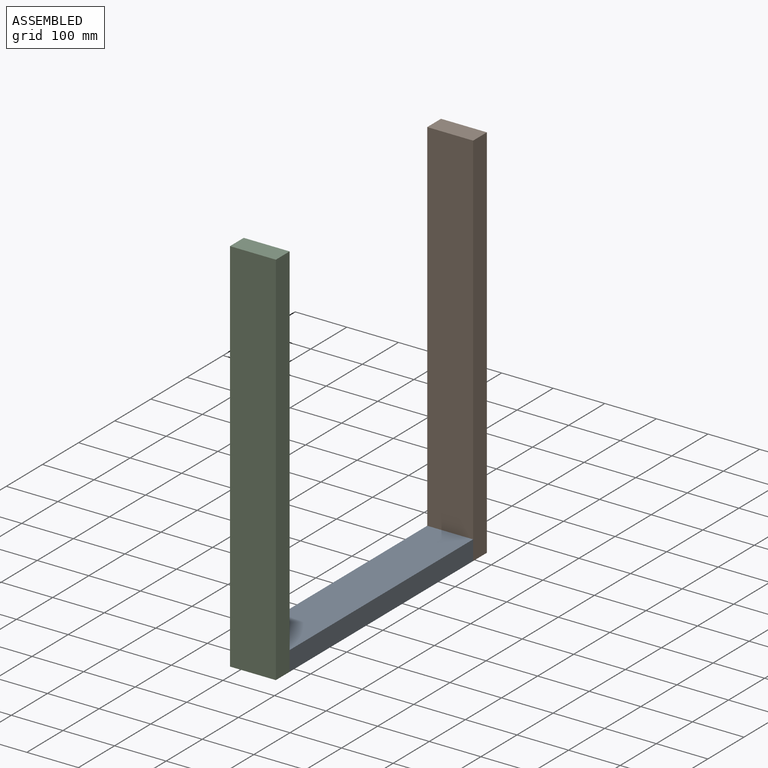
[diagram: assembled view]
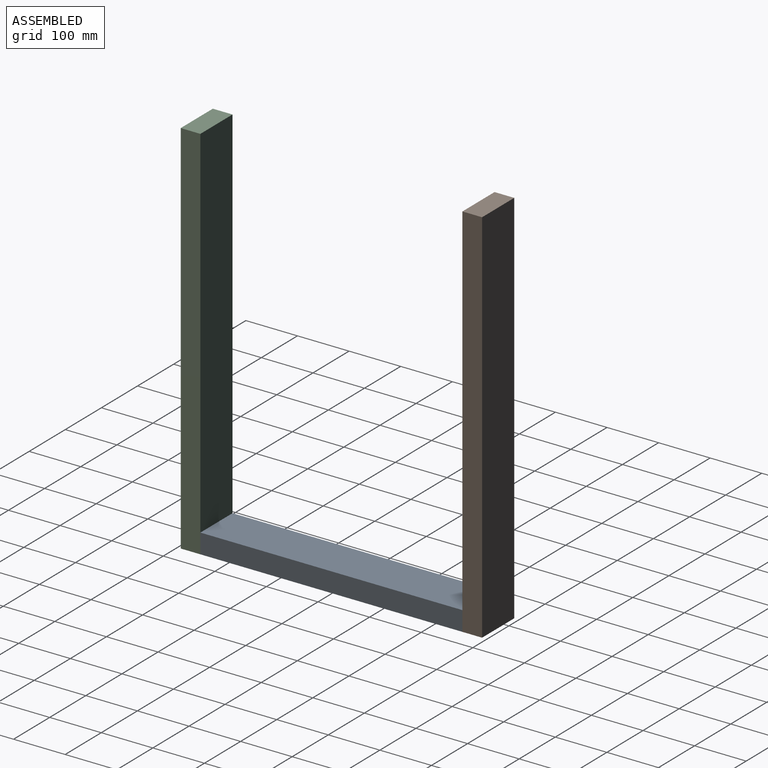
[diagram: assembled view, second angle]
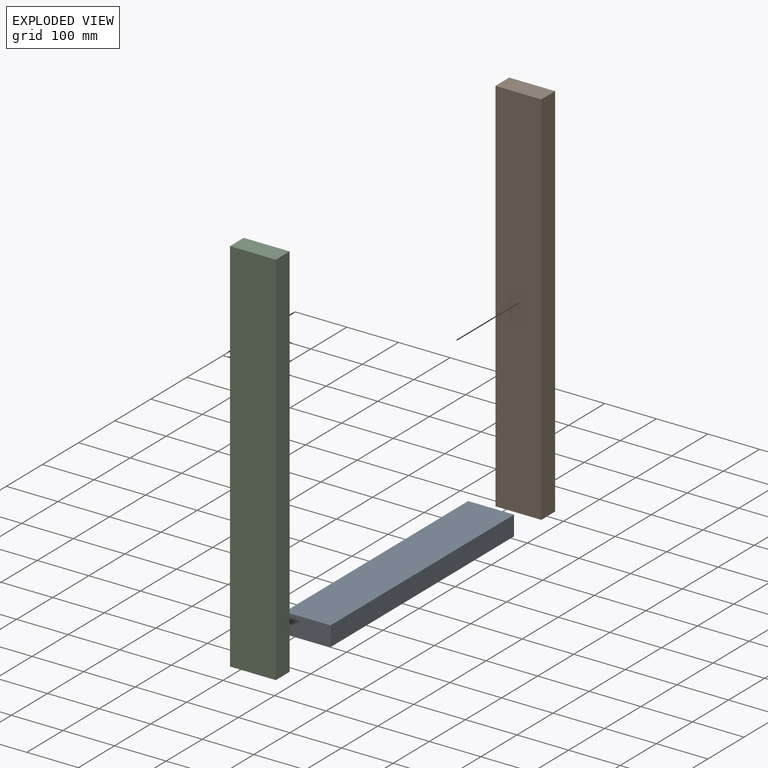
[diagram: exploded view]
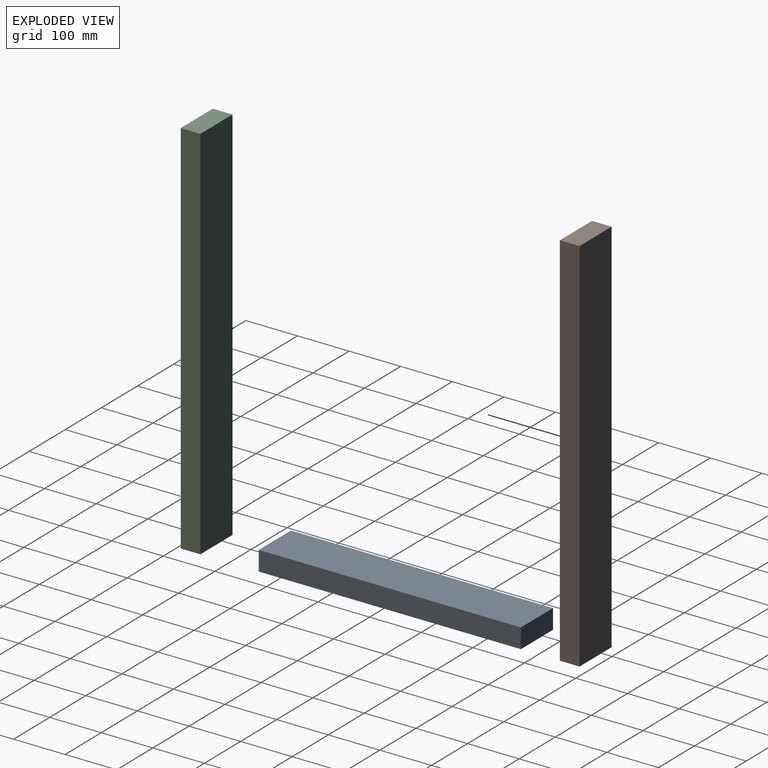
[diagram: exploded view, second angle]
ASSEMBLY  parts=3 mates=2
PART A: 6 faces, bbox 38.1x508x88.9 mm
  f0: plane 508x38.1mm, normal (0,0,-1), area 19354.8mm2, adj f1,f3,f4,f5
  f1: plane 508x88.9mm, normal (1,0,0), area 45161.2mm2, adj f0,f2,f4,f5
  f2: plane 508x38.1mm, normal (0,0,1), area 19354.8mm2, adj f1,f3,f4,f5
  f3: plane 508x88.9mm, normal (-1,0,0), area 45161.2mm2, adj f0,f2,f4,f5
  f4: plane 88.9x38.1mm, normal (0,-1,0), area 3387.1mm2, adj f0,f1,f2,f3
  f5: plane 88.9x38.1mm, normal (0,1,0), area 3387.1mm2, adj f0,f1,f2,f3
PART B: 6 faces, bbox 38.1x88.9x736.6 mm
  f0: plane 736.6x38.1mm, normal (0,-1,0), area 28064.5mm2, adj f1,f3,f4,f5
  f1: plane 736.6x88.9mm, normal (1,0,0), area 65483.7mm2, adj f0,f2,f4,f5
  f2: plane 736.6x38.1mm, normal (0,1,0), area 28064.5mm2, adj f1,f3,f4,f5
  f3: plane 736.6x88.9mm, normal (-1,0,0), area 65483.7mm2, adj f0,f2,f4,f5
  f4: plane 88.9x38.1mm, normal (0,0,1), area 3387.1mm2, adj f0,f1,f2,f3
  f5: plane 88.9x38.1mm, normal (0,0,-1), area 3387.1mm2, adj f0,f1,f2,f3
PART C: same geometry as B
PLACE A rot(axis=(0,1,0),90deg) t=(-58.64,270.1,10.14)mm
PLACE B rot(axis=(0,0,1),90deg) t=(-58.64,289.15,-8.91)mm
PLACE C rot(axis=(0,0,1),90deg) t=(-58.64,-256.95,-8.91)mm
MATE fastened A.f5 <-> B.f3  axis (0,1,0) through (-14.19,270.1,-8.91)mm
MATE fastened C.f1 <-> A.f4  axis (0,1,0) through (-14.19,-237.9,-8.91)mm
